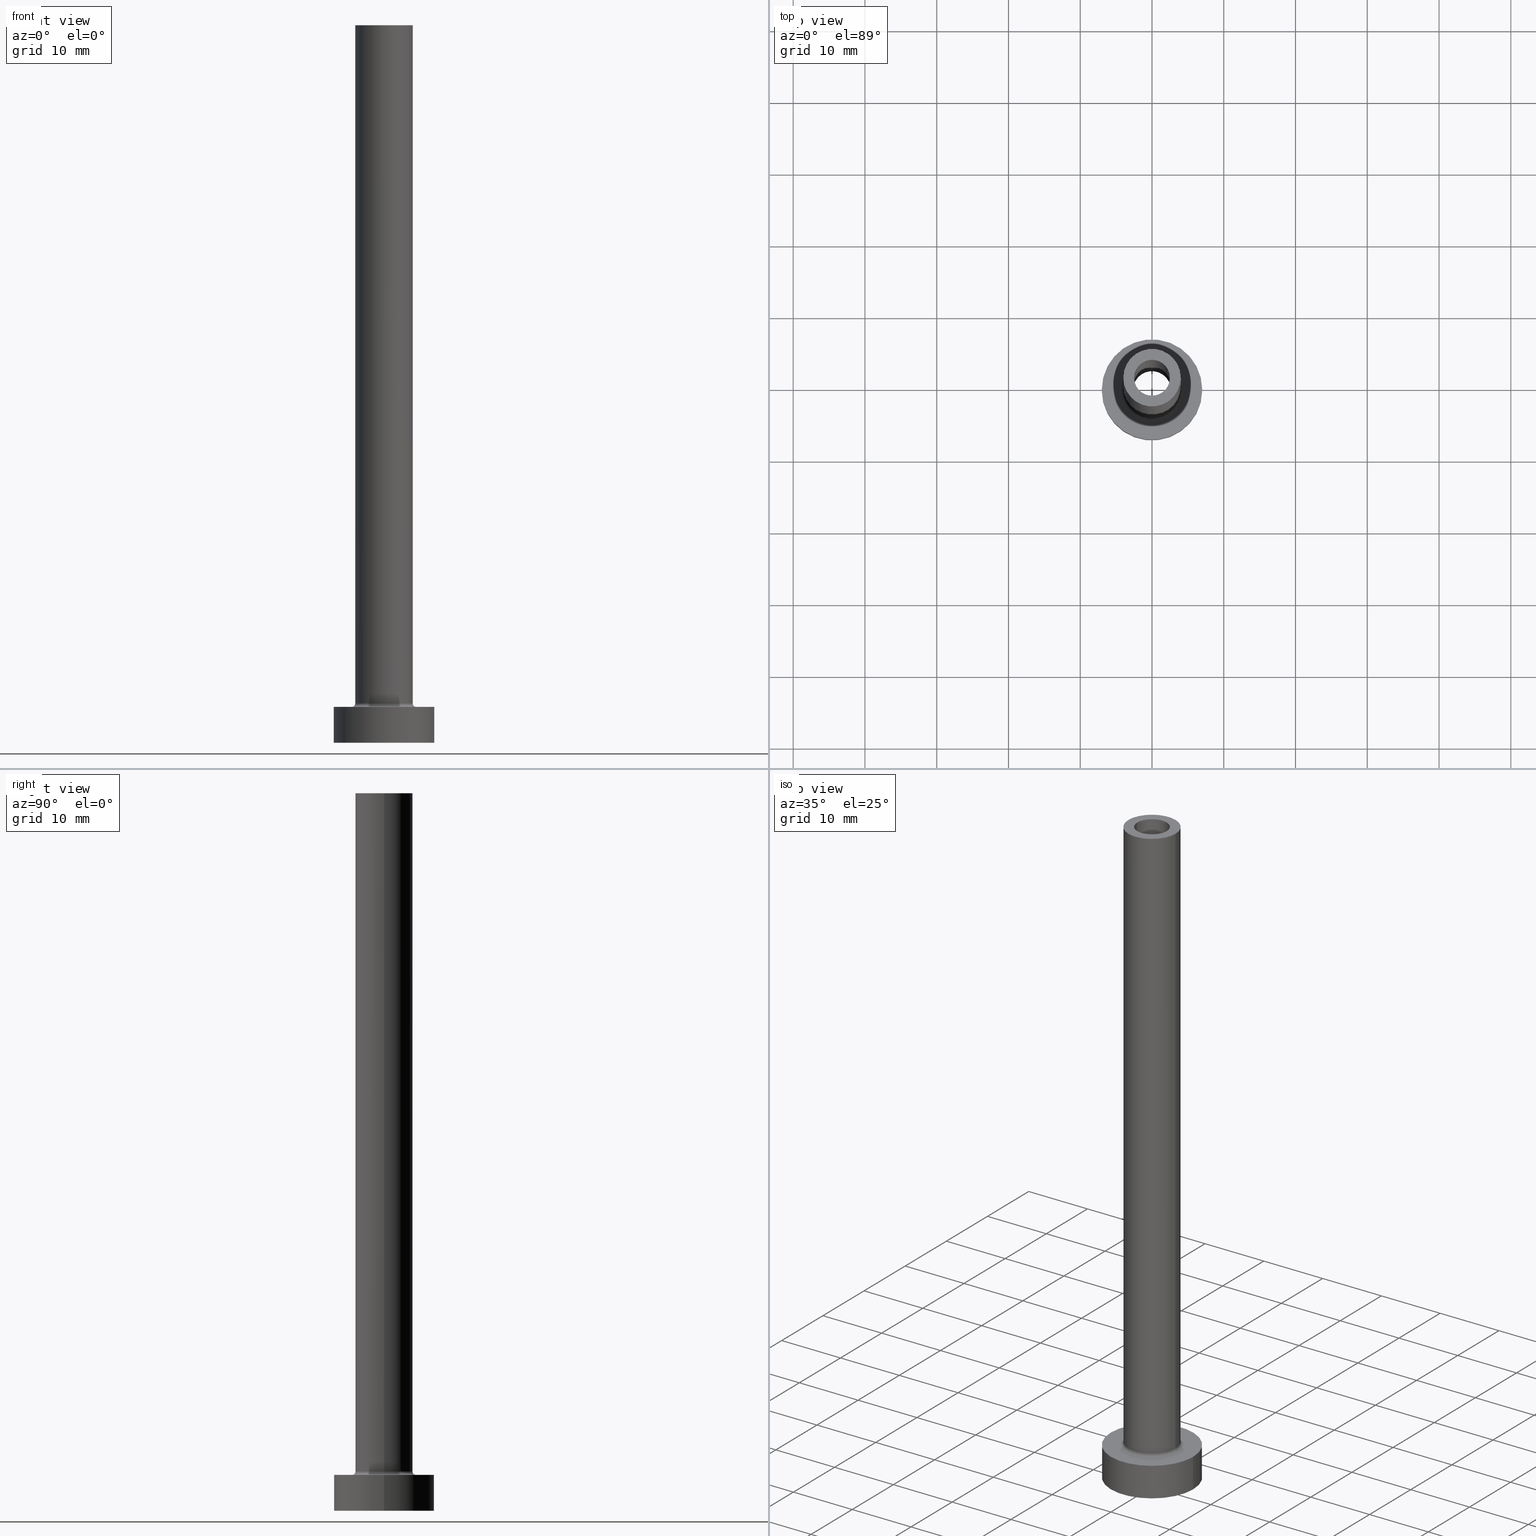
[diagram: canonical four-view strip — front | top / right | iso, engineering-drawing reading convention]
A machine part, canonical four-view strip (front | top / right | iso — engineering-drawing reading convention). The complete STEP part file that produces these views, byte-faithful:
ISO-10303-21;
HEADER;
FILE_DESCRIPTION (( 'STEP AP203' ),
    '1' );
FILE_NAME ('de8f.STEP',
    '2023-02-13T17:12:24',
    ( '' ),
    ( '' ),
    'SwSTEP 2.0',
    'SolidWorks 2019',
    '' );
FILE_SCHEMA (( 'CONFIG_CONTROL_DESIGN' ));
ENDSEC;

DATA;
#1 = ADVANCED_FACE ( 'NONE', ( #53 ), #127, .T. ) ;
#2 =( NAMED_UNIT ( * ) PLANE_ANGLE_UNIT ( ) SI_UNIT ( $, .RADIAN. ) );
#3 = PERSON_AND_ORGANIZATION ( #306, #60 ) ;
#4 = VERTEX_POINT ( 'NONE', #438 ) ;
#5 = CIRCLE ( 'NONE', #167, 2.649999999999999911 ) ;
#6 = ADVANCED_FACE ( 'NONE', ( #228 ), #195, .F. ) ;
#7 = LOCAL_TIME ( 18, 12, 24.00000000000000000, #8 ) ;
#8 = COORDINATED_UNIVERSAL_TIME_OFFSET ( 1, 0, .AHEAD. ) ;
#9 = ORIENTED_EDGE ( 'NONE', *, *, #446, .F. ) ;
#10 = PERSON_AND_ORGANIZATION_ROLE ( 'classification_officer' ) ;
#11 = ORIENTED_EDGE ( 'NONE', *, *, #137, .T. ) ;
#12 = DIRECTION ( 'NONE',  ( 1.000000000000000000, 0.000000000000000000, 0.000000000000000000 ) ) ;
#13 = TOROIDAL_SURFACE ( 'NONE', #94, 4.500000000000000888, 0.5000000000000000000 ) ;
#14 = LOCAL_TIME ( 18, 12, 24.00000000000000000, #402 ) ;
#15 = EDGE_CURVE ( 'NONE', #194, #219, #249, .T. ) ;
#16 = ORIENTED_EDGE ( 'NONE', *, *, #15, .F. ) ;
#17 = CARTESIAN_POINT ( 'NONE',  ( -4.500000000000000888, 5.510910596163088569E-16, 5.000000000000002665 ) ) ;
#18 = CIRCLE ( 'NONE', #87, 0.5000000000000004441 ) ;
#19 = DIRECTION ( 'NONE',  ( -0.000000000000000000, -0.000000000000000000, -1.000000000000000000 ) ) ;
#20 = CARTESIAN_POINT ( 'NONE',  ( 0.000000000000000000, 0.000000000000000000, 100.0000000000000000 ) ) ;
#21 = CARTESIAN_POINT ( 'NONE',  ( -2.649999999999999911, 0.000000000000000000, 62.49533188057741739 ) ) ;
#22 = ORIENTED_EDGE ( 'NONE', *, *, #177, .T. ) ;
#23 = APPLICATION_CONTEXT ( 'configuration controlled 3d designs of mechanical parts and assemblies' ) ;
#24 = DIRECTION ( 'NONE',  ( 0.000000000000000000, 0.000000000000000000, 1.000000000000000000 ) ) ;
#25 = FACE_OUTER_BOUND ( 'NONE', #323, .T. ) ;
#26 = AXIS2_PLACEMENT_3D ( 'NONE', #61, #448, #387 ) ;
#27 = EDGE_CURVE ( 'NONE', #422, #368, #266, .T. ) ;
#28 = CYLINDRICAL_SURFACE ( 'NONE', #315, 2.649999999999999911 ) ;
#29 = ORIENTED_EDGE ( 'NONE', *, *, #332, .F. ) ;
#30 = VERTEX_POINT ( 'NONE', #307 ) ;
#31 = DIRECTION ( 'NONE',  ( 1.000000000000000000, 0.000000000000000000, 0.000000000000000000 ) ) ;
#32 = DIRECTION ( 'NONE',  ( -1.000000000000000000, 0.000000000000000000, 0.000000000000000000 ) ) ;
#33 = ADVANCED_BREP_SHAPE_REPRESENTATION ( 'de8f', ( #171, #375 ), #268 ) ;
#34 = DIRECTION ( 'NONE',  ( 0.000000000000000000, 0.000000000000000000, 1.000000000000000000 ) ) ;
#35 = APPROVAL_DATE_TIME ( #392, #212 ) ;
#36 = VERTEX_POINT ( 'NONE', #203 ) ;
#37 = DIRECTION ( 'NONE',  ( 0.000000000000000000, 0.000000000000000000, -1.000000000000000000 ) ) ;
#38 = CC_DESIGN_DATE_AND_TIME_ASSIGNMENT ( #265, #85, ( #83 ) ) ;
#39 = DATE_AND_TIME ( #360, #14 ) ;
#40 = ORIENTED_EDGE ( 'NONE', *, *, #264, .F. ) ;
#41 = AXIS2_PLACEMENT_3D ( 'NONE', #49, #164, #128 ) ;
#42 = ORIENTED_EDGE ( 'NONE', *, *, #97, .T. ) ;
#43 = ORIENTED_EDGE ( 'NONE', *, *, #54, .F. ) ;
#44 = UNCERTAINTY_MEASURE_WITH_UNIT (LENGTH_MEASURE( 1.000000000000000082E-05 ), #328, 'distance_accuracy_value', 'NONE');
#45 = ORIENTED_EDGE ( 'NONE', *, *, #65, .T. ) ;
#46 = VECTOR ( 'NONE', #37, 1000.000000000000000 ) ;
#47 = EDGE_LOOP ( 'NONE', ( #180, #339 ) ) ;
#48 = AXIS2_PLACEMENT_3D ( 'NONE', #82, #301, #437 ) ;
#49 = CARTESIAN_POINT ( 'NONE',  ( 0.000000000000000000, 0.000000000000000000, 100.0000000000000000 ) ) ;
#50 = EDGE_CURVE ( 'NONE', #186, #422, #380, .T. ) ;
#51 = AXIS2_PLACEMENT_3D ( 'NONE', #240, #379, #245 ) ;
#52 = CC_DESIGN_SECURITY_CLASSIFICATION ( #83, ( #131 ) ) ;
#53 = FACE_OUTER_BOUND ( 'NONE', #349, .T. ) ;
#54 = EDGE_CURVE ( 'NONE', #4, #358, #309, .T. ) ;
#55 = DIRECTION ( 'NONE',  ( -1.000000000000000000, 0.000000000000000000, 0.000000000000000000 ) ) ;
#56 = CC_DESIGN_PERSON_AND_ORGANIZATION_ASSIGNMENT ( #185, #122, ( #131 ) ) ;
#57 = DIRECTION ( 'NONE',  ( 0.000000000000000000, 0.000000000000000000, -1.000000000000000000 ) ) ;
#58 = VERTEX_POINT ( 'NONE', #209 ) ;
#59 = AXIS2_PLACEMENT_3D ( 'NONE', #136, #322, #182 ) ;
#60 = ORGANIZATION ( 'NEUR�EN�', 'NEUR�EN�', '' ) ;
#61 = CARTESIAN_POINT ( 'NONE',  ( 0.000000000000000000, 0.000000000000000000, 5.000000000000000000 ) ) ;
#62 = EDGE_LOOP ( 'NONE', ( #40, #356, #232, #296 ) ) ;
#63 = CARTESIAN_POINT ( 'NONE',  ( 4.000000000000000000, 4.898587196589412829E-16, 5.500000000000005329 ) ) ;
#64 = FACE_OUTER_BOUND ( 'NONE', #47, .T. ) ;
#65 = EDGE_CURVE ( 'NONE', #358, #4, #288, .T. ) ;
#66 = DIRECTION ( 'NONE',  ( 1.000000000000000000, 0.000000000000000000, 0.000000000000000000 ) ) ;
#67 = CARTESIAN_POINT ( 'NONE',  ( 0.000000000000000000, 0.000000000000000000, 62.49533188057741739 ) ) ;
#68 = VERTEX_POINT ( 'NONE', #63 ) ;
#69 = APPROVAL_PERSON_ORGANIZATION ( #226, #435, #230 ) ;
#70 = CARTESIAN_POINT ( 'NONE',  ( 0.000000000000000000, 0.000000000000000000, 100.0000000000000000 ) ) ;
#71 = LINE ( 'NONE', #21, #285 ) ;
#72 = VERTEX_POINT ( 'NONE', #450 ) ;
#73 = CARTESIAN_POINT ( 'NONE',  ( 0.000000000000000000, 0.000000000000000000, 55.00000000000000711 ) ) ;
#74 = EDGE_CURVE ( 'NONE', #416, #36, #418, .T. ) ;
#75 = ORIENTED_EDGE ( 'NONE', *, *, #78, .T. ) ;
#76 = LINE ( 'NONE', #363, #46 ) ;
#77 = CIRCLE ( 'NONE', #130, 7.000000000000000000 ) ;
#78 = EDGE_CURVE ( 'NONE', #241, #68, #371, .T. ) ;
#79 = ORIENTED_EDGE ( 'NONE', *, *, #163, .F. ) ;
#80 = CALENDAR_DATE ( 2023, 13, 2 ) ;
#81 = CALENDAR_DATE ( 2023, 13, 2 ) ;
#82 = CARTESIAN_POINT ( 'NONE',  ( 0.000000000000000000, 0.000000000000000000, 5.000000000000000000 ) ) ;
#83 = SECURITY_CLASSIFICATION ( '', '', #436 ) ;
#84 = VECTOR ( 'NONE', #242, 1000.000000000000000 ) ;
#85 = DATE_TIME_ROLE ( 'classification_date' ) ;
#86 = CARTESIAN_POINT ( 'NONE',  ( -7.000000000000000000, 0.000000000000000000, 5.000000000000000000 ) ) ;
#87 = AXIS2_PLACEMENT_3D ( 'NONE', #149, #283, #104 ) ;
#88 = DIRECTION ( 'NONE',  ( -0.000000000000000000, -0.000000000000000000, -1.000000000000000000 ) ) ;
#89 = CC_DESIGN_PERSON_AND_ORGANIZATION_ASSIGNMENT ( #3, #293, ( #105 ) ) ;
#90 = DIRECTION ( 'NONE',  ( 0.000000000000000000, 0.000000000000000000, 1.000000000000000000 ) ) ;
#91 = DIRECTION ( 'NONE',  ( 0.000000000000000000, 0.000000000000000000, 1.000000000000000000 ) ) ;
#92 = CARTESIAN_POINT ( 'NONE',  ( 0.000000000000000000, 0.000000000000000000, 55.00000000000000711 ) ) ;
#93 = DIRECTION ( 'NONE',  ( 1.000000000000000000, 0.000000000000000000, 0.000000000000000000 ) ) ;
#94 = AXIS2_PLACEMENT_3D ( 'NONE', #138, #142, #31 ) ;
#95 = CARTESIAN_POINT ( 'NONE',  ( 0.000000000000000000, 0.000000000000000000, 100.0000000000000000 ) ) ;
#96 = DIRECTION ( 'NONE',  ( -1.000000000000000000, 0.000000000000000000, 0.000000000000000000 ) ) ;
#97 = EDGE_CURVE ( 'NONE', #186, #454, #277, .T. ) ;
#98 = DIRECTION ( 'NONE',  ( 0.000000000000000000, 0.000000000000000000, 1.000000000000000000 ) ) ;
#99 = DIRECTION ( 'NONE',  ( -1.000000000000000000, 0.000000000000000000, 0.000000000000000000 ) ) ;
#100 = CARTESIAN_POINT ( 'NONE',  ( 4.000000000000000000, 4.898587196589412829E-16, 100.0000000000000000 ) ) ;
#101 = LINE ( 'NONE', #345, #461 ) ;
#102 = ORIENTED_EDGE ( 'NONE', *, *, #223, .F. ) ;
#103 = TOROIDAL_SURFACE ( 'NONE', #324, 4.500000000000000888, 0.5000000000000000000 ) ;
#104 = DIRECTION ( 'NONE',  ( 0.000000000000000000, 0.000000000000000000, -1.000000000000000000 ) ) ;
#105 = PRODUCT ( 'de8f', 'de8f', '', ( #218 ) ) ;
#106 = PERSON_AND_ORGANIZATION ( #306, #60 ) ;
#107 = EDGE_LOOP ( 'NONE', ( #22, #169 ) ) ;
#108 = CC_DESIGN_PERSON_AND_ORGANIZATION_ASSIGNMENT ( #233, #406, ( #131 ) ) ;
#109 = PERSON_AND_ORGANIZATION ( #306, #60 ) ;
#110 = VECTOR ( 'NONE', #455, 1000.000000000000000 ) ;
#111 = ORIENTED_EDGE ( 'NONE', *, *, #250, .F. ) ;
#112 = DIRECTION ( 'NONE',  ( 0.000000000000000000, 0.000000000000000000, 1.000000000000000000 ) ) ;
#113 = APPROVAL_PERSON_ORGANIZATION ( #224, #212, #355 ) ;
#114 = APPROVAL_ROLE ( '' ) ;
#115 = ORIENTED_EDGE ( 'NONE', *, *, #27, .T. ) ;
#116 = ORIENTED_EDGE ( 'NONE', *, *, #97, .F. ) ;
#117 = AXIS2_PLACEMENT_3D ( 'NONE', #310, #176, #174 ) ;
#118 = APPROVAL_STATUS ( 'not_yet_approved' ) ;
#119 = LINE ( 'NONE', #259, #150 ) ;
#120 = DESIGN_CONTEXT ( 'detailed design', #23, 'design' ) ;
#121 = EDGE_CURVE ( 'NONE', #430, #68, #342, .T. ) ;
#122 = PERSON_AND_ORGANIZATION_ROLE ( 'creator' ) ;
#123 = CIRCLE ( 'NONE', #414, 4.000000000000000000 ) ;
#124 = CARTESIAN_POINT ( 'NONE',  ( 0.000000000000000000, 0.000000000000000000, 5.000000000000000000 ) ) ;
#125 = CC_DESIGN_DATE_AND_TIME_ASSIGNMENT ( #289, #428, ( #390 ) ) ;
#126 = SHAPE_DEFINITION_REPRESENTATION ( #354, #33 ) ;
#127 = CYLINDRICAL_SURFACE ( 'NONE', #48, 7.000000000000000000 ) ;
#128 = DIRECTION ( 'NONE',  ( -1.000000000000000000, 0.000000000000000000, 0.000000000000000000 ) ) ;
#129 = ORIENTED_EDGE ( 'NONE', *, *, #65, .F. ) ;
#130 = AXIS2_PLACEMENT_3D ( 'NONE', #168, #91, #308 ) ;
#131 = PRODUCT_DEFINITION_FORMATION_WITH_SPECIFIED_SOURCE ( 'LIBOVOLN�', '', #105, .NOT_KNOWN. ) ;
#132 = CC_DESIGN_PERSON_AND_ORGANIZATION_ASSIGNMENT ( #263, #10, ( #83 ) ) ;
#133 = CARTESIAN_POINT ( 'NONE',  ( 0.000000000000000000, 0.000000000000000000, 5.000000000000000000 ) ) ;
#134 = FACE_BOUND ( 'NONE', #201, .T. ) ;
#135 = DIRECTION ( 'NONE',  ( 1.000000000000000000, 0.000000000000000000, 0.000000000000000000 ) ) ;
#136 = CARTESIAN_POINT ( 'NONE',  ( 0.000000000000000000, 0.000000000000000000, 0.000000000000000000 ) ) ;
#137 = EDGE_CURVE ( 'NONE', #68, #430, #220, .T. ) ;
#138 = CARTESIAN_POINT ( 'NONE',  ( 0.000000000000000000, 0.000000000000000000, 5.500000000000005329 ) ) ;
#139 = DIRECTION ( 'NONE',  ( 0.000000000000000000, 0.000000000000000000, 1.000000000000000000 ) ) ;
#140 = CIRCLE ( 'NONE', #246, 0.5000000000000004441 ) ;
#141 = CC_DESIGN_APPROVAL ( #435, ( #83 ) ) ;
#142 = DIRECTION ( 'NONE',  ( 0.000000000000000000, 0.000000000000000000, 1.000000000000000000 ) ) ;
#143 = CARTESIAN_POINT ( 'NONE',  ( 0.000000000000000000, 0.000000000000000000, 100.0000000000000000 ) ) ;
#144 = ORIENTED_EDGE ( 'NONE', *, *, #332, .T. ) ;
#145 = DIRECTION ( 'NONE',  ( 1.000000000000000000, 0.000000000000000000, 0.000000000000000000 ) ) ;
#146 = DIRECTION ( 'NONE',  ( 0.000000000000000000, 0.000000000000000000, -1.000000000000000000 ) ) ;
#147 = EDGE_LOOP ( 'NONE', ( #294, #427 ) ) ;
#148 = ADVANCED_FACE ( 'NONE', ( #272, #350 ), #237, .T. ) ;
#149 = CARTESIAN_POINT ( 'NONE',  ( 4.500000000000000888, 0.000000000000000000, 5.500000000000005329 ) ) ;
#150 = VECTOR ( 'NONE', #367, 1000.000000000000000 ) ;
#151 = DIRECTION ( 'NONE',  ( 0.000000000000000000, 0.000000000000000000, 1.000000000000000000 ) ) ;
#152 = ORIENTED_EDGE ( 'NONE', *, *, #377, .F. ) ;
#153 = APPROVAL_STATUS ( 'not_yet_approved' ) ;
#154 = AXIS2_PLACEMENT_3D ( 'NONE', #353, #34, #184 ) ;
#155 = DIRECTION ( 'NONE',  ( -1.000000000000000000, 1.224646799147351482E-16, 0.000000000000000000 ) ) ;
#156 = LOCAL_TIME ( 18, 12, 24.00000000000000000, #407 ) ;
#157 = EDGE_LOOP ( 'NONE', ( #316, #399, #16, #262 ) ) ;
#158 = ADVANCED_FACE ( 'NONE', ( #412 ), #13, .F. ) ;
#159 = DIRECTION ( 'NONE',  ( 1.000000000000000000, 0.000000000000000000, 0.000000000000000000 ) ) ;
#160 = AXIS2_PLACEMENT_3D ( 'NONE', #236, #139, #411 ) ;
#161 = AXIS2_PLACEMENT_3D ( 'NONE', #429, #112, #396 ) ;
#162 = FACE_OUTER_BOUND ( 'NONE', #397, .T. ) ;
#163 = EDGE_CURVE ( 'NONE', #358, #72, #269, .T. ) ;
#164 = DIRECTION ( 'NONE',  ( 0.000000000000000000, 0.000000000000000000, -1.000000000000000000 ) ) ;
#165 = DIRECTION ( 'NONE',  ( -0.000000000000000000, -0.000000000000000000, -1.000000000000000000 ) ) ;
#166 = DIRECTION ( 'NONE',  ( 1.000000000000000000, 0.000000000000000000, 0.000000000000000000 ) ) ;
#167 = AXIS2_PLACEMENT_3D ( 'NONE', #243, #340, #456 ) ;
#168 = CARTESIAN_POINT ( 'NONE',  ( 0.000000000000000000, 0.000000000000000000, 5.000000000000000000 ) ) ;
#169 = ORIENTED_EDGE ( 'NONE', *, *, #452, .T. ) ;
#170 = ADVANCED_FACE ( 'NONE', ( #385 ), #103, .F. ) ;
#171 = MANIFOLD_SOLID_BREP ( 'Odebrat vysunut�m4', #234 ) ;
#172 = DIRECTION ( 'NONE',  ( 1.000000000000000000, 0.000000000000000000, -0.000000000000000000 ) ) ;
#173 = DIRECTION ( 'NONE',  ( -0.000000000000000000, -0.000000000000000000, -1.000000000000000000 ) ) ;
#174 = DIRECTION ( 'NONE',  ( 1.000000000000000000, 0.000000000000000000, 0.000000000000000000 ) ) ;
#175 = CARTESIAN_POINT ( 'NONE',  ( -7.000000000000000000, 0.000000000000000000, 0.000000000000000000 ) ) ;
#176 = DIRECTION ( 'NONE',  ( 0.000000000000000000, 0.000000000000000000, 1.000000000000000000 ) ) ;
#177 = EDGE_CURVE ( 'NONE', #280, #241, #123, .T. ) ;
#178 = FACE_OUTER_BOUND ( 'NONE', #62, .T. ) ;
#179 = ORIENTED_EDGE ( 'NONE', *, *, #312, .F. ) ;
#180 = ORIENTED_EDGE ( 'NONE', *, *, #398, .T. ) ;
#181 = FACE_OUTER_BOUND ( 'NONE', #257, .T. ) ;
#182 = DIRECTION ( 'NONE',  ( 1.000000000000000000, 0.000000000000000000, 0.000000000000000000 ) ) ;
#183 = ORIENTED_EDGE ( 'NONE', *, *, #121, .T. ) ;
#184 = DIRECTION ( 'NONE',  ( 1.000000000000000000, 0.000000000000000000, -0.000000000000000000 ) ) ;
#185 = PERSON_AND_ORGANIZATION ( #306, #60 ) ;
#186 = VERTEX_POINT ( 'NONE', #213 ) ;
#187 = APPLICATION_CONTEXT ( 'configuration controlled 3d designs of mechanical parts and assemblies' ) ;
#188 = CARTESIAN_POINT ( 'NONE',  ( 0.000000000000000000, 0.000000000000000000, 0.000000000000000000 ) ) ;
#189 = ADVANCED_FACE ( 'NONE', ( #181 ), #318, .T. ) ;
#190 = APPROVAL_DATE_TIME ( #39, #271 ) ;
#191 = ORIENTED_EDGE ( 'NONE', *, *, #312, .T. ) ;
#192 = ORIENTED_EDGE ( 'NONE', *, *, #15, .T. ) ;
#193 = ADVANCED_FACE ( 'NONE', ( #337, #216 ), #423, .F. ) ;
#194 = VERTEX_POINT ( 'NONE', #458 ) ;
#195 = CYLINDRICAL_SURFACE ( 'NONE', #41, 2.500000000000000000 ) ;
#196 = VECTOR ( 'NONE', #199, 1000.000000000000000 ) ;
#197 = EDGE_CURVE ( 'NONE', #68, #194, #18, .T. ) ;
#198 = CARTESIAN_POINT ( 'NONE',  ( 0.000000000000000000, 0.000000000000000000, 5.000000000000000000 ) ) ;
#199 = DIRECTION ( 'NONE',  ( 0.000000000000000000, 0.000000000000000000, -1.000000000000000000 ) ) ;
#200 = CARTESIAN_POINT ( 'NONE',  ( 0.000000000000000000, 0.000000000000000000, 0.000000000000000000 ) ) ;
#201 = EDGE_LOOP ( 'NONE', ( #383, #457 ) ) ;
#202 = CIRCLE ( 'NONE', #59, 7.000000000000000000 ) ;
#203 = CARTESIAN_POINT ( 'NONE',  ( -2.649999999999999911, 0.000000000000000000, 55.00000000000000711 ) ) ;
#204 = CARTESIAN_POINT ( 'NONE',  ( 0.000000000000000000, 0.000000000000000000, 100.0000000000000000 ) ) ;
#205 = AXIS2_PLACEMENT_3D ( 'NONE', #420, #24, #281 ) ;
#206 = DIRECTION ( 'NONE',  ( 0.000000000000000000, 0.000000000000000000, 1.000000000000000000 ) ) ;
#207 = CARTESIAN_POINT ( 'NONE',  ( 0.000000000000000000, 0.000000000000000000, 62.49533188057741739 ) ) ;
#208 = EDGE_CURVE ( 'NONE', #72, #58, #276, .T. ) ;
#209 = CARTESIAN_POINT ( 'NONE',  ( 2.500000000000000000, 3.061616997868382648E-16, 55.00000000000000711 ) ) ;
#210 = CYLINDRICAL_SURFACE ( 'NONE', #291, 2.500000000000000000 ) ;
#211 = AXIS2_PLACEMENT_3D ( 'NONE', #200, #338, #352 ) ;
#212 = APPROVAL ( #248, 'NEUR�EN�' ) ;
#213 = CARTESIAN_POINT ( 'NONE',  ( 7.000000000000000000, 8.572527594031473190E-16, 5.000000000000000000 ) ) ;
#214 = DIRECTION ( 'NONE',  ( 0.000000000000000000, 0.000000000000000000, -1.000000000000000000 ) ) ;
#215 = ORIENTED_EDGE ( 'NONE', *, *, #321, .T. ) ;
#216 = FACE_OUTER_BOUND ( 'NONE', #260, .T. ) ;
#217 = COORDINATED_UNIVERSAL_TIME_OFFSET ( 1, 0, .AHEAD. ) ;
#218 = MECHANICAL_CONTEXT ( 'NONE', #187, 'mechanical' ) ;
#219 = VERTEX_POINT ( 'NONE', #17 ) ;
#220 = CIRCLE ( 'NONE', #347, 4.000000000000000000 ) ;
#221 = CARTESIAN_POINT ( 'NONE',  ( -4.500000000000000888, 5.510910596163089556E-16, 5.500000000000005329 ) ) ;
#222 = VECTOR ( 'NONE', #417, 1000.000000000000000 ) ;
#223 = EDGE_CURVE ( 'NONE', #30, #331, #449, .T. ) ;
#224 = PERSON_AND_ORGANIZATION ( #306, #60 ) ;
#225 = EDGE_LOOP ( 'NONE', ( #29, #102 ) ) ;
#226 = PERSON_AND_ORGANIZATION ( #306, #60 ) ;
#227 = ORIENTED_EDGE ( 'NONE', *, *, #27, .F. ) ;
#228 = FACE_OUTER_BOUND ( 'NONE', #445, .T. ) ;
#229 = AXIS2_PLACEMENT_3D ( 'NONE', #198, #165, #159 ) ;
#230 = APPROVAL_ROLE ( '' ) ;
#231 = CIRCLE ( 'NONE', #51, 2.500000000000000000 ) ;
#232 = ORIENTED_EDGE ( 'NONE', *, *, #163, .T. ) ;
#233 = PERSON_AND_ORGANIZATION ( #306, #60 ) ;
#234 = CLOSED_SHELL ( 'NONE', ( #6, #279, #170, #343, #189, #1, #361, #193, #303, #148, #158, #287, #384, #290 ) ) ;
#235 = DIRECTION ( 'NONE',  ( 0.000000000000000000, 0.000000000000000000, 1.000000000000000000 ) ) ;
#236 = CARTESIAN_POINT ( 'NONE',  ( 0.000000000000000000, 0.000000000000000000, 55.00000000000000711 ) ) ;
#237 = PLANE ( 'NONE',  #267 ) ;
#238 = DIRECTION ( 'NONE',  ( -1.000000000000000000, 0.000000000000000000, 0.000000000000000000 ) ) ;
#239 = CARTESIAN_POINT ( 'NONE',  ( 0.000000000000000000, 0.000000000000000000, 5.500000000000005329 ) ) ;
#240 = CARTESIAN_POINT ( 'NONE',  ( 0.000000000000000000, 0.000000000000000000, 55.00000000000000711 ) ) ;
#241 = VERTEX_POINT ( 'NONE', #434 ) ;
#242 = DIRECTION ( 'NONE',  ( -0.000000000000000000, -0.000000000000000000, -1.000000000000000000 ) ) ;
#243 = CARTESIAN_POINT ( 'NONE',  ( 0.000000000000000000, 0.000000000000000000, 55.00000000000000711 ) ) ;
#244 = DIRECTION ( 'NONE',  ( 1.000000000000000000, 0.000000000000000000, 0.000000000000000000 ) ) ;
#245 = DIRECTION ( 'NONE',  ( 1.000000000000000000, 0.000000000000000000, 0.000000000000000000 ) ) ;
#246 = AXIS2_PLACEMENT_3D ( 'NONE', #221, #319, #155 ) ;
#247 = DIRECTION ( 'NONE',  ( 0.000000000000000000, 0.000000000000000000, 1.000000000000000000 ) ) ;
#248 = APPROVAL_STATUS ( 'not_yet_approved' ) ;
#249 = CIRCLE ( 'NONE', #229, 4.500000000000000888 ) ;
#250 = EDGE_CURVE ( 'NONE', #219, #194, #359, .T. ) ;
#251 = PERSON_AND_ORGANIZATION_ROLE ( 'creator' ) ;
#252 = ORIENTED_EDGE ( 'NONE', *, *, #404, .F. ) ;
#253 = COORDINATED_UNIVERSAL_TIME_OFFSET ( 1, 0, .AHEAD. ) ;
#254 = CC_DESIGN_APPROVAL ( #212, ( #131 ) ) ;
#255 = ORIENTED_EDGE ( 'NONE', *, *, #223, .T. ) ;
#256 = ORIENTED_EDGE ( 'NONE', *, *, #452, .F. ) ;
#257 = EDGE_LOOP ( 'NONE', ( #419, #42, #403, #227 ) ) ;
#258 = DATE_AND_TIME ( #335, #156 ) ;
#259 = CARTESIAN_POINT ( 'NONE',  ( 2.500000000000000000, 3.061616997868382648E-16, 100.0000000000000000 ) ) ;
#260 = EDGE_LOOP ( 'NONE', ( #252, #152 ) ) ;
#261 = AXIS2_PLACEMENT_3D ( 'NONE', #409, #88, #166 ) ;
#262 = ORIENTED_EDGE ( 'NONE', *, *, #197, .F. ) ;
#263 = PERSON_AND_ORGANIZATION ( #306, #60 ) ;
#264 = EDGE_CURVE ( 'NONE', #4, #58, #119, .T. ) ;
#265 = DATE_AND_TIME ( #81, #7 ) ;
#266 = LINE ( 'NONE', #86, #110 ) ;
#267 = AXIS2_PLACEMENT_3D ( 'NONE', #20, #98, #172 ) ;
#268 =( GEOMETRIC_REPRESENTATION_CONTEXT ( 3 ) GLOBAL_UNCERTAINTY_ASSIGNED_CONTEXT ( ( #44 ) ) GLOBAL_UNIT_ASSIGNED_CONTEXT ( ( #328, #2, #459 ) ) REPRESENTATION_CONTEXT ( 'NONE', 'WORKASPACE' ) );
#269 = LINE ( 'NONE', #274, #196 ) ;
#270 = PLANE ( 'NONE',  #160 ) ;
#271 = APPROVAL ( #153, 'NEUR�EN�' ) ;
#272 = FACE_BOUND ( 'NONE', #388, .T. ) ;
#273 = DIRECTION ( 'NONE',  ( -0.000000000000000000, -0.000000000000000000, -1.000000000000000000 ) ) ;
#274 = CARTESIAN_POINT ( 'NONE',  ( -2.500000000000000000, 0.000000000000000000, 100.0000000000000000 ) ) ;
#275 = DIRECTION ( 'NONE',  ( 0.000000000000000000, 0.000000000000000000, -1.000000000000000000 ) ) ;
#276 = CIRCLE ( 'NONE', #386, 2.500000000000000000 ) ;
#277 = LINE ( 'NONE', #381, #84 ) ;
#278 = FACE_OUTER_BOUND ( 'NONE', #425, .T. ) ;
#279 = ADVANCED_FACE ( 'NONE', ( #162 ), #302, .F. ) ;
#280 = VERTEX_POINT ( 'NONE', #453 ) ;
#281 = DIRECTION ( 'NONE',  ( 1.000000000000000000, 0.000000000000000000, 0.000000000000000000 ) ) ;
#282 = CARTESIAN_POINT ( 'NONE',  ( 0.000000000000000000, 0.000000000000000000, 0.000000000000000000 ) ) ;
#283 = DIRECTION ( 'NONE',  ( 0.000000000000000000, -1.000000000000000000, 0.000000000000000000 ) ) ;
#284 = APPLICATION_PROTOCOL_DEFINITION ( 'international standard', 'config_control_design', 1994, #187 ) ;
#285 = VECTOR ( 'NONE', #214, 1000.000000000000000 ) ;
#286 = CC_DESIGN_APPROVAL ( #271, ( #390 ) ) ;
#287 = ADVANCED_FACE ( 'NONE', ( #25 ), #28, .F. ) ;
#288 = CIRCLE ( 'NONE', #117, 2.500000000000000000 ) ;
#289 = DATE_AND_TIME ( #80, #440 ) ;
#290 = ADVANCED_FACE ( 'NONE', ( #178 ), #210, .F. ) ;
#291 = AXIS2_PLACEMENT_3D ( 'NONE', #143, #146, #96 ) ;
#292 = AXIS2_PLACEMENT_3D ( 'NONE', #124, #333, #12 ) ;
#293 = PERSON_AND_ORGANIZATION_ROLE ( 'design_owner' ) ;
#294 = ORIENTED_EDGE ( 'NONE', *, *, #299, .F. ) ;
#295 = CC_DESIGN_PERSON_AND_ORGANIZATION_ASSIGNMENT ( #106, #251, ( #390 ) ) ;
#296 = ORIENTED_EDGE ( 'NONE', *, *, #351, .F. ) ;
#297 = ORIENTED_EDGE ( 'NONE', *, *, #137, .F. ) ;
#298 = AXIS2_PLACEMENT_3D ( 'NONE', #382, #305, #348 ) ;
#299 = EDGE_CURVE ( 'NONE', #36, #416, #5, .T. ) ;
#300 = APPROVAL_PERSON_ORGANIZATION ( #109, #271, #114 ) ;
#301 = DIRECTION ( 'NONE',  ( -0.000000000000000000, -0.000000000000000000, -1.000000000000000000 ) ) ;
#302 = CYLINDRICAL_SURFACE ( 'NONE', #370, 2.649999999999999911 ) ;
#303 = ADVANCED_FACE ( 'NONE', ( #278 ), #443, .T. ) ;
#304 = CIRCLE ( 'NONE', #161, 4.000000000000000000 ) ;
#305 = DIRECTION ( 'NONE',  ( -0.000000000000000000, -0.000000000000000000, -1.000000000000000000 ) ) ;
#306 = PERSON ( 'NEUR�EN�', 'NEUR�EN�', 'NEUR�EN�', ('NEUR�EN�'), ('NEUR�EN�'), ('NEUR�EN�') ) ;
#307 = CARTESIAN_POINT ( 'NONE',  ( 2.649999999999999911, 3.245314017740485962E-16, 0.000000000000000000 ) ) ;
#308 = DIRECTION ( 'NONE',  ( 1.000000000000000000, 0.000000000000000000, 0.000000000000000000 ) ) ;
#309 = CIRCLE ( 'NONE', #369, 2.500000000000000000 ) ;
#310 = CARTESIAN_POINT ( 'NONE',  ( 0.000000000000000000, 0.000000000000000000, 100.0000000000000000 ) ) ;
#311 = FACE_BOUND ( 'NONE', #433, .T. ) ;
#312 = EDGE_CURVE ( 'NONE', #36, #331, #71, .T. ) ;
#313 = FACE_OUTER_BOUND ( 'NONE', #147, .T. ) ;
#314 = ORIENTED_EDGE ( 'NONE', *, *, #299, .T. ) ;
#315 = AXIS2_PLACEMENT_3D ( 'NONE', #67, #57, #99 ) ;
#316 = ORIENTED_EDGE ( 'NONE', *, *, #121, .F. ) ;
#317 = ORIENTED_EDGE ( 'NONE', *, *, #177, .F. ) ;
#318 = CYLINDRICAL_SURFACE ( 'NONE', #439, 7.000000000000000000 ) ;
#319 = DIRECTION ( 'NONE',  ( 1.224646799147353207E-16, 1.000000000000000000, -0.000000000000000000 ) ) ;
#320 = ORIENTED_EDGE ( 'NONE', *, *, #208, .F. ) ;
#321 = EDGE_CURVE ( 'NONE', #280, #430, #101, .T. ) ;
#322 = DIRECTION ( 'NONE',  ( 0.000000000000000000, 0.000000000000000000, 1.000000000000000000 ) ) ;
#323 = EDGE_LOOP ( 'NONE', ( #9, #395, #191, #144 ) ) ;
#324 = AXIS2_PLACEMENT_3D ( 'NONE', #239, #374, #378 ) ;
#325 = ORIENTED_EDGE ( 'NONE', *, *, #250, .T. ) ;
#326 = CALENDAR_DATE ( 2023, 13, 2 ) ;
#327 = ORIENTED_EDGE ( 'NONE', *, *, #197, .T. ) ;
#328 =( LENGTH_UNIT ( ) NAMED_UNIT ( * ) SI_UNIT ( .MILLI., .METRE. ) );
#329 = CIRCLE ( 'NONE', #334, 2.649999999999999911 ) ;
#330 = ORIENTED_EDGE ( 'NONE', *, *, #398, .F. ) ;
#331 = VERTEX_POINT ( 'NONE', #441 ) ;
#332 = EDGE_CURVE ( 'NONE', #331, #30, #329, .T. ) ;
#333 = DIRECTION ( 'NONE',  ( -0.000000000000000000, -0.000000000000000000, -1.000000000000000000 ) ) ;
#334 = AXIS2_PLACEMENT_3D ( 'NONE', #282, #19, #93 ) ;
#335 = CALENDAR_DATE ( 2023, 13, 2 ) ;
#336 = APPROVAL_DATE_TIME ( #258, #435 ) ;
#337 = FACE_BOUND ( 'NONE', #225, .T. ) ;
#338 = DIRECTION ( 'NONE',  ( 0.000000000000000000, 0.000000000000000000, 1.000000000000000000 ) ) ;
#339 = ORIENTED_EDGE ( 'NONE', *, *, #50, .T. ) ;
#340 = DIRECTION ( 'NONE',  ( 0.000000000000000000, 0.000000000000000000, 1.000000000000000000 ) ) ;
#341 = ORIENTED_EDGE ( 'NONE', *, *, #446, .T. ) ;
#342 = CIRCLE ( 'NONE', #205, 4.000000000000000000 ) ;
#343 = ADVANCED_FACE ( 'NONE', ( #421 ), #413, .T. ) ;
#344 = DIRECTION ( 'NONE',  ( 0.000000000000000000, 0.000000000000000000, 1.000000000000000000 ) ) ;
#345 = CARTESIAN_POINT ( 'NONE',  ( -4.000000000000000000, 0.000000000000000000, 100.0000000000000000 ) ) ;
#346 = DIRECTION ( 'NONE',  ( 0.000000000000000000, 0.000000000000000000, 1.000000000000000000 ) ) ;
#347 = AXIS2_PLACEMENT_3D ( 'NONE', #447, #206, #244 ) ;
#348 = DIRECTION ( 'NONE',  ( -1.000000000000000000, 0.000000000000000000, 0.000000000000000000 ) ) ;
#349 = EDGE_LOOP ( 'NONE', ( #116, #330, #115, #389 ) ) ;
#350 = FACE_OUTER_BOUND ( 'NONE', #107, .T. ) ;
#351 = EDGE_CURVE ( 'NONE', #58, #72, #231, .T. ) ;
#352 = DIRECTION ( 'NONE',  ( 1.000000000000000000, 0.000000000000000000, 0.000000000000000000 ) ) ;
#353 = CARTESIAN_POINT ( 'NONE',  ( 0.000000000000000000, 0.000000000000000000, 0.000000000000000000 ) ) ;
#354 = PRODUCT_DEFINITION_SHAPE ( 'NONE', 'NONE',  #390 ) ;
#355 = APPROVAL_ROLE ( '' ) ;
#356 = ORIENTED_EDGE ( 'NONE', *, *, #54, .T. ) ;
#357 = CARTESIAN_POINT ( 'NONE',  ( -7.000000000000000000, 0.000000000000000000, 5.000000000000000000 ) ) ;
#358 = VERTEX_POINT ( 'NONE', #376 ) ;
#359 = CIRCLE ( 'NONE', #292, 4.500000000000000888 ) ;
#360 = CALENDAR_DATE ( 2023, 13, 2 ) ;
#361 = ADVANCED_FACE ( 'NONE', ( #311, #64 ), #372, .T. ) ;
#362 = AXIS2_PLACEMENT_3D ( 'NONE', #415, #90, #442 ) ;
#363 = CARTESIAN_POINT ( 'NONE',  ( 2.649999999999999911, 3.245314017740485962E-16, 62.49533188057741739 ) ) ;
#364 = EDGE_LOOP ( 'NONE', ( #393, #297, #327, #111 ) ) ;
#365 = CARTESIAN_POINT ( 'NONE',  ( 7.000000000000000000, 8.572527594031473190E-16, 0.000000000000000000 ) ) ;
#366 = ORIENTED_EDGE ( 'NONE', *, *, #264, .T. ) ;
#367 = DIRECTION ( 'NONE',  ( 0.000000000000000000, 0.000000000000000000, -1.000000000000000000 ) ) ;
#368 = VERTEX_POINT ( 'NONE', #175 ) ;
#369 = AXIS2_PLACEMENT_3D ( 'NONE', #95, #235, #135 ) ;
#370 = AXIS2_PLACEMENT_3D ( 'NONE', #207, #275, #32 ) ;
#371 = LINE ( 'NONE', #100, #222 ) ;
#372 = PLANE ( 'NONE',  #26 ) ;
#373 = AXIS2_PLACEMENT_3D ( 'NONE', #204, #273, #238 ) ;
#374 = DIRECTION ( 'NONE',  ( 0.000000000000000000, 0.000000000000000000, 1.000000000000000000 ) ) ;
#375 = AXIS2_PLACEMENT_3D ( 'NONE', #188, #151, #426 ) ;
#376 = CARTESIAN_POINT ( 'NONE',  ( -2.500000000000000000, 0.000000000000000000, 100.0000000000000000 ) ) ;
#377 = EDGE_CURVE ( 'NONE', #454, #368, #408, .T. ) ;
#378 = DIRECTION ( 'NONE',  ( 1.000000000000000000, 0.000000000000000000, 0.000000000000000000 ) ) ;
#379 = DIRECTION ( 'NONE',  ( 0.000000000000000000, 0.000000000000000000, 1.000000000000000000 ) ) ;
#380 = CIRCLE ( 'NONE', #362, 7.000000000000000000 ) ;
#381 = CARTESIAN_POINT ( 'NONE',  ( 7.000000000000000000, 8.572527594031473190E-16, 5.000000000000000000 ) ) ;
#382 = CARTESIAN_POINT ( 'NONE',  ( 0.000000000000000000, 0.000000000000000000, 100.0000000000000000 ) ) ;
#383 = ORIENTED_EDGE ( 'NONE', *, *, #208, .T. ) ;
#384 = ADVANCED_FACE ( 'NONE', ( #134, #313 ), #270, .F. ) ;
#385 = FACE_OUTER_BOUND ( 'NONE', #157, .T. ) ;
#386 = AXIS2_PLACEMENT_3D ( 'NONE', #73, #247, #391 ) ;
#387 = DIRECTION ( 'NONE',  ( 1.000000000000000000, 0.000000000000000000, -0.000000000000000000 ) ) ;
#388 = EDGE_LOOP ( 'NONE', ( #129, #43 ) ) ;
#389 = ORIENTED_EDGE ( 'NONE', *, *, #404, .T. ) ;
#390 = PRODUCT_DEFINITION ( 'NEZN�M�', '', #131, #120 ) ;
#391 = DIRECTION ( 'NONE',  ( 1.000000000000000000, 0.000000000000000000, 0.000000000000000000 ) ) ;
#392 = DATE_AND_TIME ( #326, #451 ) ;
#393 = ORIENTED_EDGE ( 'NONE', *, *, #432, .F. ) ;
#394 = CARTESIAN_POINT ( 'NONE',  ( 2.649999999999999911, 3.245314017740485962E-16, 55.00000000000000711 ) ) ;
#395 = ORIENTED_EDGE ( 'NONE', *, *, #74, .T. ) ;
#396 = DIRECTION ( 'NONE',  ( 1.000000000000000000, 0.000000000000000000, 0.000000000000000000 ) ) ;
#397 = EDGE_LOOP ( 'NONE', ( #314, #341, #255, #179 ) ) ;
#398 = EDGE_CURVE ( 'NONE', #422, #186, #77, .T. ) ;
#399 = ORIENTED_EDGE ( 'NONE', *, *, #432, .T. ) ;
#400 = ORIENTED_EDGE ( 'NONE', *, *, #321, .F. ) ;
#401 = AXIS2_PLACEMENT_3D ( 'NONE', #92, #346, #145 ) ;
#402 = COORDINATED_UNIVERSAL_TIME_OFFSET ( 1, 0, .AHEAD. ) ;
#403 = ORIENTED_EDGE ( 'NONE', *, *, #377, .T. ) ;
#404 = EDGE_CURVE ( 'NONE', #368, #454, #202, .T. ) ;
#405 = PRODUCT_RELATED_PRODUCT_CATEGORY ( 'detail', '', ( #105 ) ) ;
#406 = PERSON_AND_ORGANIZATION_ROLE ( 'design_supplier' ) ;
#407 = COORDINATED_UNIVERSAL_TIME_OFFSET ( 1, 0, .AHEAD. ) ;
#408 = CIRCLE ( 'NONE', #211, 7.000000000000000000 ) ;
#409 = CARTESIAN_POINT ( 'NONE',  ( 0.000000000000000000, 0.000000000000000000, 0.000000000000000000 ) ) ;
#410 = DIRECTION ( 'NONE',  ( -0.000000000000000000, -0.000000000000000000, -1.000000000000000000 ) ) ;
#411 = DIRECTION ( 'NONE',  ( 1.000000000000000000, 0.000000000000000000, -0.000000000000000000 ) ) ;
#412 = FACE_OUTER_BOUND ( 'NONE', #364, .T. ) ;
#413 = CYLINDRICAL_SURFACE ( 'NONE', #373, 4.000000000000000000 ) ;
#414 = AXIS2_PLACEMENT_3D ( 'NONE', #70, #344, #66 ) ;
#415 = CARTESIAN_POINT ( 'NONE',  ( 0.000000000000000000, 0.000000000000000000, 5.000000000000000000 ) ) ;
#416 = VERTEX_POINT ( 'NONE', #394 ) ;
#417 = DIRECTION ( 'NONE',  ( -0.000000000000000000, -0.000000000000000000, -1.000000000000000000 ) ) ;
#418 = CIRCLE ( 'NONE', #401, 2.649999999999999911 ) ;
#419 = ORIENTED_EDGE ( 'NONE', *, *, #50, .F. ) ;
#420 = CARTESIAN_POINT ( 'NONE',  ( 0.000000000000000000, 0.000000000000000000, 5.500000000000005329 ) ) ;
#421 = FACE_OUTER_BOUND ( 'NONE', #460, .T. ) ;
#422 = VERTEX_POINT ( 'NONE', #357 ) ;
#423 = PLANE ( 'NONE',  #154 ) ;
#424 = APPLICATION_PROTOCOL_DEFINITION ( 'international standard', 'config_control_design', 1994, #23 ) ;
#425 = EDGE_LOOP ( 'NONE', ( #444, #317, #215, #183 ) ) ;
#426 = DIRECTION ( 'NONE',  ( 1.000000000000000000, 0.000000000000000000, 0.000000000000000000 ) ) ;
#427 = ORIENTED_EDGE ( 'NONE', *, *, #74, .F. ) ;
#428 = DATE_TIME_ROLE ( 'creation_date' ) ;
#429 = CARTESIAN_POINT ( 'NONE',  ( 0.000000000000000000, 0.000000000000000000, 100.0000000000000000 ) ) ;
#430 = VERTEX_POINT ( 'NONE', #431 ) ;
#431 = CARTESIAN_POINT ( 'NONE',  ( -4.000000000000000000, 0.000000000000000000, 5.500000000000005329 ) ) ;
#432 = EDGE_CURVE ( 'NONE', #430, #219, #140, .T. ) ;
#433 = EDGE_LOOP ( 'NONE', ( #192, #325 ) ) ;
#434 = CARTESIAN_POINT ( 'NONE',  ( 4.000000000000000000, 4.898587196589412829E-16, 100.0000000000000000 ) ) ;
#435 = APPROVAL ( #118, 'NEUR�EN�' ) ;
#436 = SECURITY_CLASSIFICATION_LEVEL ( 'unclassified' ) ;
#437 = DIRECTION ( 'NONE',  ( -1.000000000000000000, 0.000000000000000000, 0.000000000000000000 ) ) ;
#438 = CARTESIAN_POINT ( 'NONE',  ( 2.500000000000000000, 3.061616997868382648E-16, 100.0000000000000000 ) ) ;
#439 = AXIS2_PLACEMENT_3D ( 'NONE', #133, #410, #55 ) ;
#440 = LOCAL_TIME ( 18, 12, 24.00000000000000000, #217 ) ;
#441 = CARTESIAN_POINT ( 'NONE',  ( -2.649999999999999911, 0.000000000000000000, 0.000000000000000000 ) ) ;
#442 = DIRECTION ( 'NONE',  ( 1.000000000000000000, 0.000000000000000000, 0.000000000000000000 ) ) ;
#443 = CYLINDRICAL_SURFACE ( 'NONE', #298, 4.000000000000000000 ) ;
#444 = ORIENTED_EDGE ( 'NONE', *, *, #78, .F. ) ;
#445 = EDGE_LOOP ( 'NONE', ( #45, #366, #320, #79 ) ) ;
#446 = EDGE_CURVE ( 'NONE', #416, #30, #76, .T. ) ;
#447 = CARTESIAN_POINT ( 'NONE',  ( 0.000000000000000000, 0.000000000000000000, 5.500000000000005329 ) ) ;
#448 = DIRECTION ( 'NONE',  ( 0.000000000000000000, 0.000000000000000000, 1.000000000000000000 ) ) ;
#449 = CIRCLE ( 'NONE', #261, 2.649999999999999911 ) ;
#450 = CARTESIAN_POINT ( 'NONE',  ( -2.500000000000000000, 0.000000000000000000, 55.00000000000000711 ) ) ;
#451 = LOCAL_TIME ( 18, 12, 24.00000000000000000, #253 ) ;
#452 = EDGE_CURVE ( 'NONE', #241, #280, #304, .T. ) ;
#453 = CARTESIAN_POINT ( 'NONE',  ( -4.000000000000000000, 0.000000000000000000, 100.0000000000000000 ) ) ;
#454 = VERTEX_POINT ( 'NONE', #365 ) ;
#455 = DIRECTION ( 'NONE',  ( -0.000000000000000000, -0.000000000000000000, -1.000000000000000000 ) ) ;
#456 = DIRECTION ( 'NONE',  ( 1.000000000000000000, 0.000000000000000000, 0.000000000000000000 ) ) ;
#457 = ORIENTED_EDGE ( 'NONE', *, *, #351, .T. ) ;
#458 = CARTESIAN_POINT ( 'NONE',  ( 4.500000000000000888, 0.000000000000000000, 5.000000000000002665 ) ) ;
#459 =( NAMED_UNIT ( * ) SI_UNIT ( $, .STERADIAN. ) SOLID_ANGLE_UNIT ( ) );
#460 = EDGE_LOOP ( 'NONE', ( #256, #75, #11, #400 ) ) ;
#461 = VECTOR ( 'NONE', #173, 1000.000000000000000 ) ;
ENDSEC;
END-ISO-10303-21;
